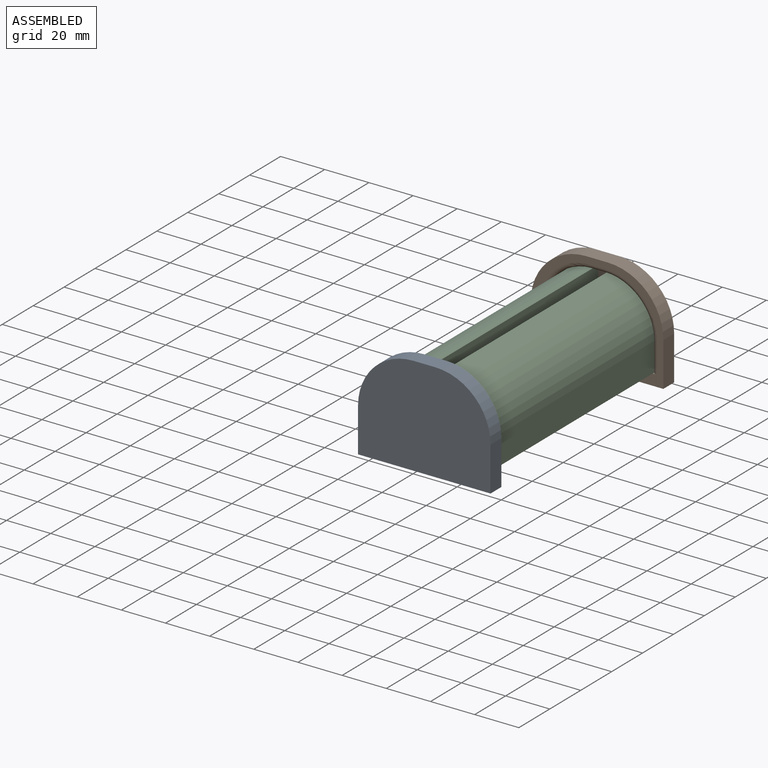
[diagram: assembled view]
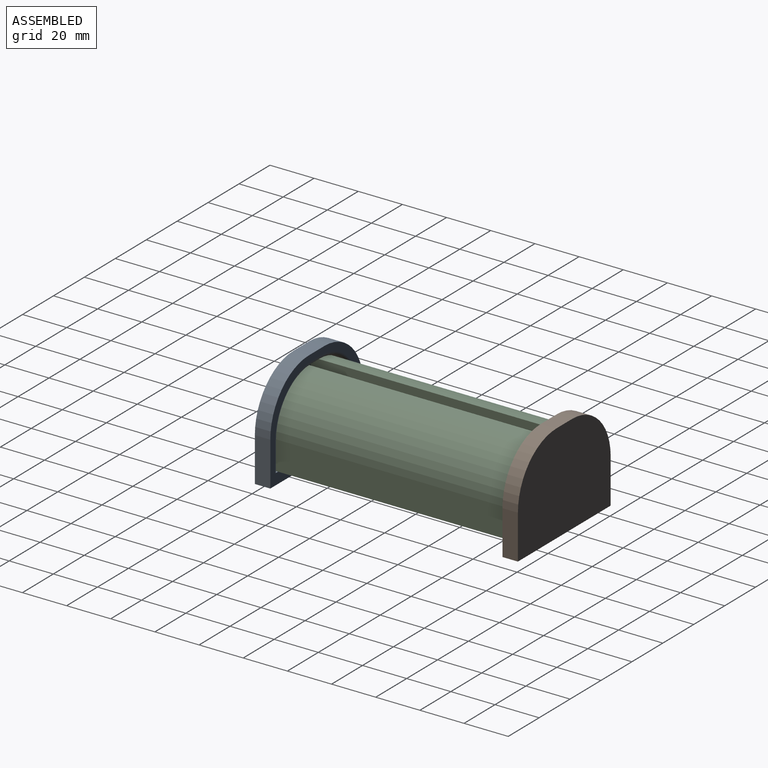
[diagram: assembled view, second angle]
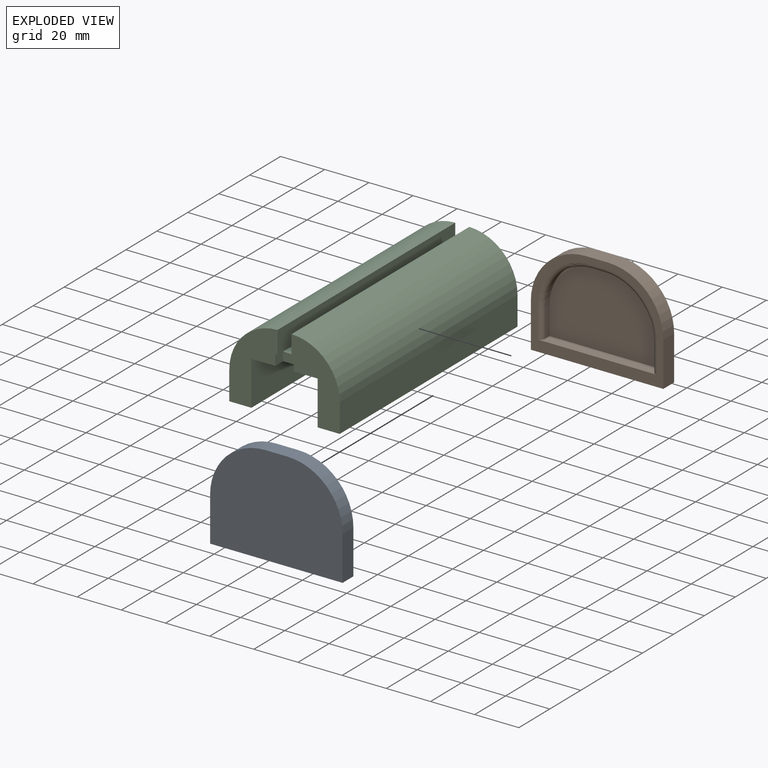
[diagram: exploded view]
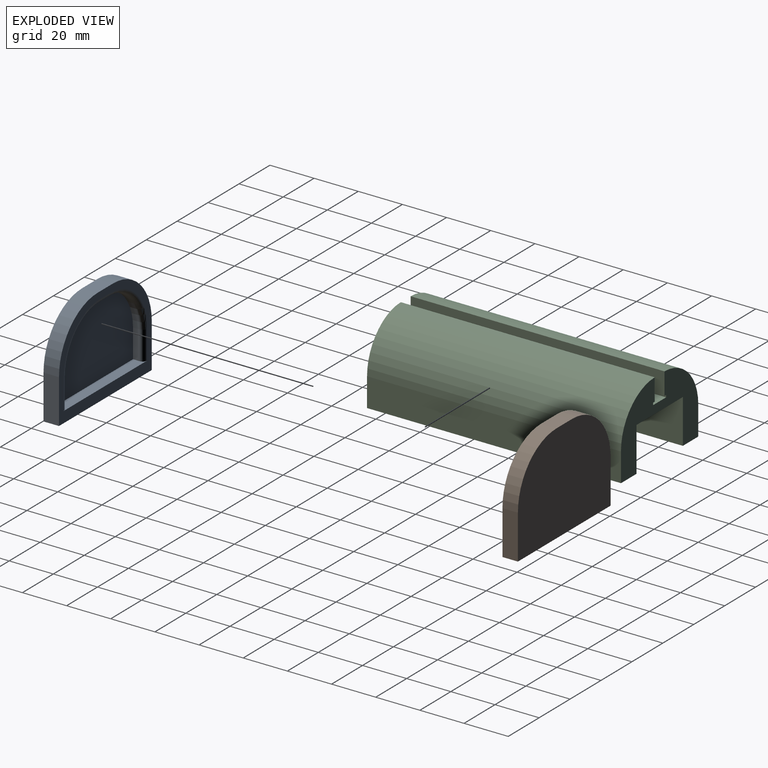
[diagram: exploded view, second angle]
ASSEMBLY  parts=3 mates=2
PART A: 20 faces, bbox 61x7x45.5 mm
  f0: plane 20x7mm, normal (-1,0,0), area 140mm2, adj f1,f4,f5,f14
  f1: plane 60x7mm, normal (0,0,-1), area 420mm2, adj f0,f2,f4,f5
  f2: plane 20x7mm, normal (1,0,0), area 140mm2, adj f1,f4,f5,f13
  f3: plane 10x7mm, normal (0,0,1), area 70mm2, adj f4,f5,f13,f14
  f4: plane 60x45mm, normal (0,1,0), area 681mm2, adj f0,f1,f2,f3,f7,f13,f14,f15
  f5: plane 60x45mm, normal (0,-1,0), area 2431.7mm2, adj f0,f1,f2,f3,f13,f14
  f6: plane 13x3mm, normal (1,0,0), area 39mm2, adj f7,f10,f12,f19
  f7: plane 54x5mm, normal (0,0,1), area 251.7mm2, adj f4,f6,f8,f10,f15,f19
  f8: plane 13x3mm, normal (-1,0,0), area 39mm2, adj f7,f10,f11,f15
  f9: plane 6x3mm, normal (0,0,-1), area 18mm2, adj f10,f11,f12,f17
  f10: plane 50x35mm, normal (0,1,0), area 1542.3mm2, adj f6,f7,f8,f9,f11,f12
  f11: cylinder r=22mm len=22mm, axis (0,1,0), area 103.7mm2, adj f8,f9,f10,f16
  f12: cylinder r=22mm len=22mm, axis (0,-1,0), area 103.7mm2, adj f6,f9,f10,f18
  f13: cylinder r=25mm len=25mm, axis (0,-1,0), area 274.9mm2, adj f2,f3,f4,f5
  f14: cylinder r=25mm len=25mm, axis (0,1,0), area 274.9mm2, adj f0,f3,f4,f5
  f15: cylinder r=2mm len=13mm, axis (0,0,-1), area 40.8mm2, adj f4,f7,f8,f16
  f16: torus R=24mm, axis (0,-1,0), area 112.2mm2, adj f4,f11,f15,f17
  f17: cylinder r=2mm len=6mm, axis (1,0,0), area 18.8mm2, adj f4,f9,f16,f18
  f18: torus R=24mm, axis (0,-1,0), area 112.2mm2, adj f4,f12,f17,f19
  f19: cylinder r=2mm len=13mm, axis (0,0,1), area 40.8mm2, adj f4,f6,f7,f18
PART B: same geometry as A
PART C: 20 faces, bbox 50x115x35 mm
  f0: plane 110x8.35mm, normal (0,0,1), area 918.5mm2, adj f4,f6,f7,f17
  f1: plane 35x21.83mm, normal (0,-1,0), area 418.5mm2, adj f3,f5,f6,f12,f13,f14,f15,f19
  f2: plane 35x21.83mm, normal (0,-1,0), area 418.5mm2, adj f7,f8,f9,f10,f11,f15,f16,f18
  f3: plane 115x10mm, normal (0,0,-1), area 1150mm2, adj f1,f4,f12,f14
  f4: plane 50x35mm, normal (0,1,0), area 870.4mm2, adj f0,f3,f5,f6,f7,f8,f9,f10
  f5: plane 115x1mm, normal (0,0,-1), area 115mm2, adj f1,f4,f6,f13
  f6: plane 115x5mm, normal (-1,0,0), area 135mm2, adj f0,f1,f4,f5,f15,f17
  f7: plane 115x5mm, normal (1,0,0), area 135mm2, adj f0,f2,f4,f8,f15,f17
  f8: plane 115x1mm, normal (0,0,-1), area 115mm2, adj f2,f4,f7,f9
  f9: plane 115x10mm, normal (1,0,0), area 1150mm2, adj f2,f4,f8,f18
  f10: plane 115x13mm, normal (-1,0,0), area 1495.1mm2, adj f2,f4,f11,f18
  f11: plane 115x10mm, normal (0,0,-1), area 1150mm2, adj f2,f4,f10,f16
  f12: plane 115x13mm, normal (1,0,0), area 1495.1mm2, adj f1,f3,f4,f19
  f13: plane 115x10mm, normal (-1,0,0), area 1150mm2, adj f1,f4,f5,f19
  f14: plane 115x20mm, normal (-1,0,0), area 2300mm2, adj f1,f3,f4,f15
  f15: plane 115x30mm, normal (0,0,-1), area 3408.2mm2, adj f1,f2,f4,f6,f7,f14,f16,f17
  f16: plane 115x20mm, normal (1,0,0), area 2300mm2, adj f2,f4,f11,f15
  f17: plane 8.35x4mm, normal (0,-1,0), area 33.4mm2, adj f0,f6,f7,f15
  f18: cylinder r=22mm len=115mm, axis (0,1,0), area 3954mm2, adj f2,f4,f9,f10
  f19: cylinder r=22mm len=115mm, axis (0,-1,0), area 3954mm2, adj f1,f4,f12,f13
PLACE A t=(66.16,80.06,64.44)mm
PLACE B rot(axis=(0,0,1),180deg) t=(65.98,156.06,64.44)mm
PLACE C t=(66.16,118.06,59.44)mm
MATE slider B.f10 <-> C.f4  axis (0,-1,0) through (62.98,175.56,94.44)mm
MATE slider C.f19 <-> A.f11  axis (0,-1,0) through (69.16,60.56,72.44)mm
